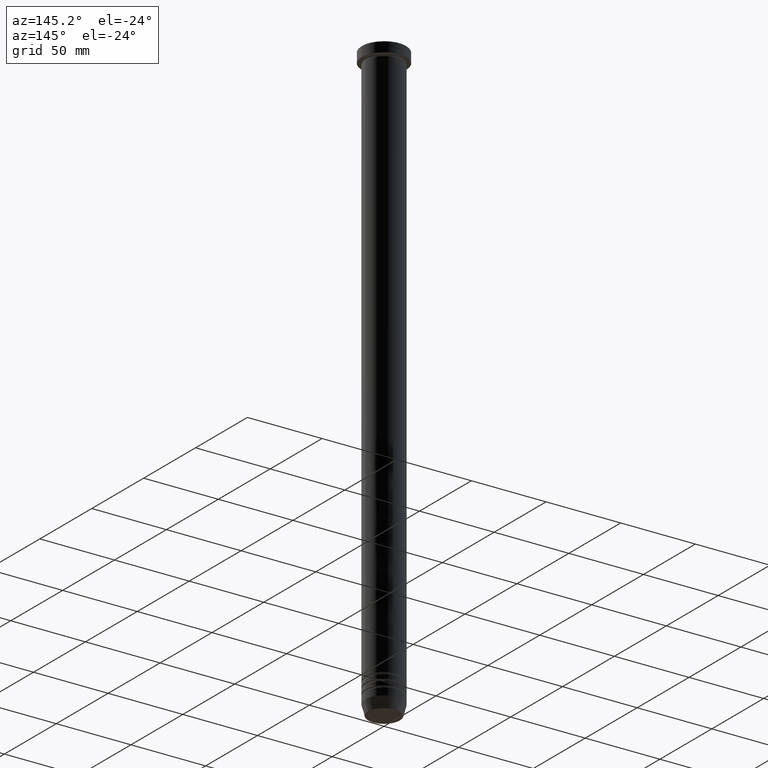
[diagram: clean part render]
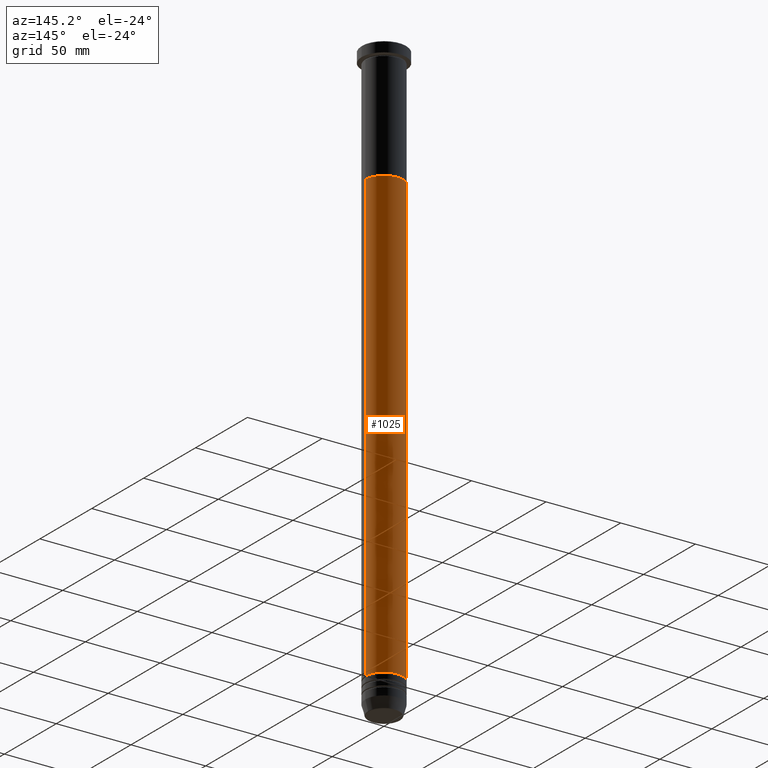
[diagram: same view with one face highlighted and labeled with its STEP entity id]
A machine part, auxiliary view. The second image highlights one B-rep face of the part: STEP entity #1025.
In plain terms, the highlighted cylindrical surface (edge-blend (fillet) strip) has radius 12.5 mm, axis along (-0, -0, 1).
Its self-contained STEP definition (entity closure, byte-faithful):
#16 = DIRECTION ( 'NONE',  ( 1.000000000000000000, 0.000000000000000000, 0.000000000000000000 ) ) ;
#92 = CARTESIAN_POINT ( 'NONE',  ( 12.49999999999999289, 0.000000000000000000, -379.0000000000000000 ) ) ;
#103 = VERTEX_POINT ( 'NONE', #166 ) ;
#106 = EDGE_CURVE ( 'NONE', #816, #389, #424, .T. ) ;
#111 = DIRECTION ( 'NONE',  ( -0.000000000000000000, -0.000000000000000000, 1.000000000000000000 ) ) ;
#166 = CARTESIAN_POINT ( 'NONE',  ( -12.50000000000000000, 1.530808498934191521E-15, -80.00000000000000000 ) ) ;
#171 = CARTESIAN_POINT ( 'NONE',  ( 0.000000000000000000, 0.000000000000000000, -80.00000000000000000 ) ) ;
#183 = FACE_OUTER_BOUND ( 'NONE', #266, .T. ) ;
#260 = AXIS2_PLACEMENT_3D ( 'NONE', #884, #264, #1050 ) ;
#264 = DIRECTION ( 'NONE',  ( -0.000000000000000000, -0.000000000000000000, 1.000000000000000000 ) ) ;
#266 = EDGE_LOOP ( 'NONE', ( #371, #680, #874, #284 ) ) ;
#274 = EDGE_CURVE ( 'NONE', #389, #103, #369, .T. ) ;
#284 = ORIENTED_EDGE ( 'NONE', *, *, #412, .F. ) ;
#288 = EDGE_CURVE ( 'NONE', #1047, #103, #543, .T. ) ;
#298 = CYLINDRICAL_SURFACE ( 'NONE', #931, 12.49999999999999645 ) ;
#335 = CARTESIAN_POINT ( 'NONE',  ( 12.49999999999999645, 0.000000000000000000, 0.000000000000000000 ) ) ;
#369 = LINE ( 'NONE', #688, #686 ) ;
#371 = ORIENTED_EDGE ( 'NONE', *, *, #106, .T. ) ;
#381 = DIRECTION ( 'NONE',  ( -0.000000000000000000, -0.000000000000000000, 1.000000000000000000 ) ) ;
#389 = VERTEX_POINT ( 'NONE', #645 ) ;
#412 = EDGE_CURVE ( 'NONE', #816, #1047, #418, .T. ) ;
#418 = LINE ( 'NONE', #335, #742 ) ;
#424 = CIRCLE ( 'NONE', #260, 12.49999999999999289 ) ;
#543 = CIRCLE ( 'NONE', #674, 12.50000000000000000 ) ;
#546 = DIRECTION ( 'NONE',  ( 1.000000000000000000, 0.000000000000000000, 0.000000000000000000 ) ) ;
#587 = DIRECTION ( 'NONE',  ( -0.000000000000000000, -0.000000000000000000, 1.000000000000000000 ) ) ;
#645 = CARTESIAN_POINT ( 'NONE',  ( -12.49999999999999289, 1.530808498934190930E-15, -379.0000000000000000 ) ) ;
#674 = AXIS2_PLACEMENT_3D ( 'NONE', #171, #743, #16 ) ;
#680 = ORIENTED_EDGE ( 'NONE', *, *, #274, .T. ) ;
#686 = VECTOR ( 'NONE', #587, 1000.000000000000000 ) ;
#688 = CARTESIAN_POINT ( 'NONE',  ( -12.49999999999999645, 1.530808498934191127E-15, 0.000000000000000000 ) ) ;
#698 = CARTESIAN_POINT ( 'NONE',  ( 12.50000000000000000, 0.000000000000000000, -80.00000000000000000 ) ) ;
#742 = VECTOR ( 'NONE', #111, 1000.000000000000000 ) ;
#743 = DIRECTION ( 'NONE',  ( -0.000000000000000000, -0.000000000000000000, 1.000000000000000000 ) ) ;
#816 = VERTEX_POINT ( 'NONE', #92 ) ;
#874 = ORIENTED_EDGE ( 'NONE', *, *, #288, .F. ) ;
#875 = CARTESIAN_POINT ( 'NONE',  ( 0.000000000000000000, 0.000000000000000000, 0.000000000000000000 ) ) ;
#884 = CARTESIAN_POINT ( 'NONE',  ( 0.000000000000000000, 0.000000000000000000, -379.0000000000000000 ) ) ;
#931 = AXIS2_PLACEMENT_3D ( 'NONE', #875, #381, #546 ) ;
#1025 = ADVANCED_FACE ( 'NONE', ( #183 ), #298, .T. ) ;
#1047 = VERTEX_POINT ( 'NONE', #698 ) ;
#1050 = DIRECTION ( 'NONE',  ( 1.000000000000000000, 0.000000000000000000, 0.000000000000000000 ) ) ;